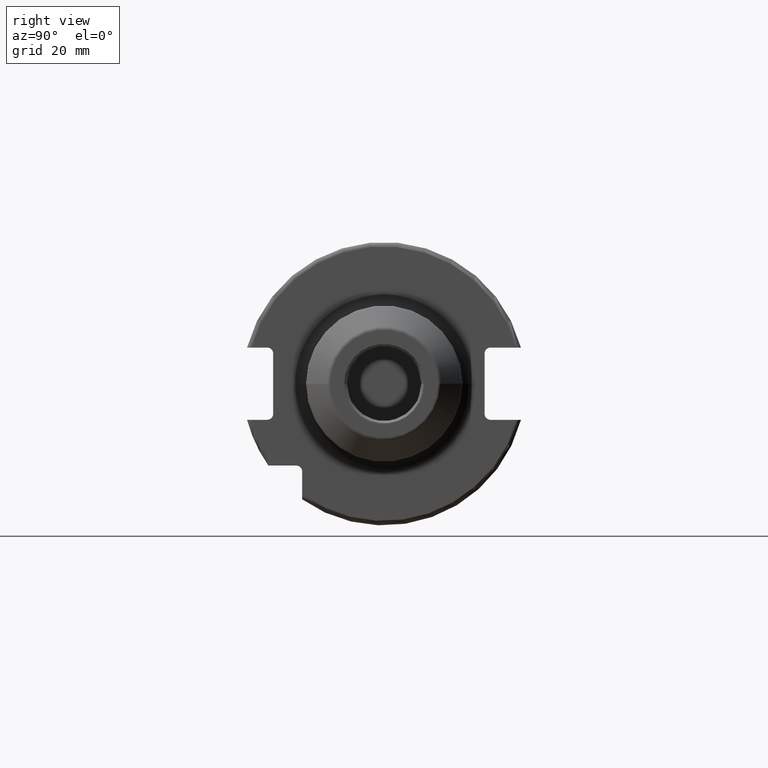
[diagram: clean part render]
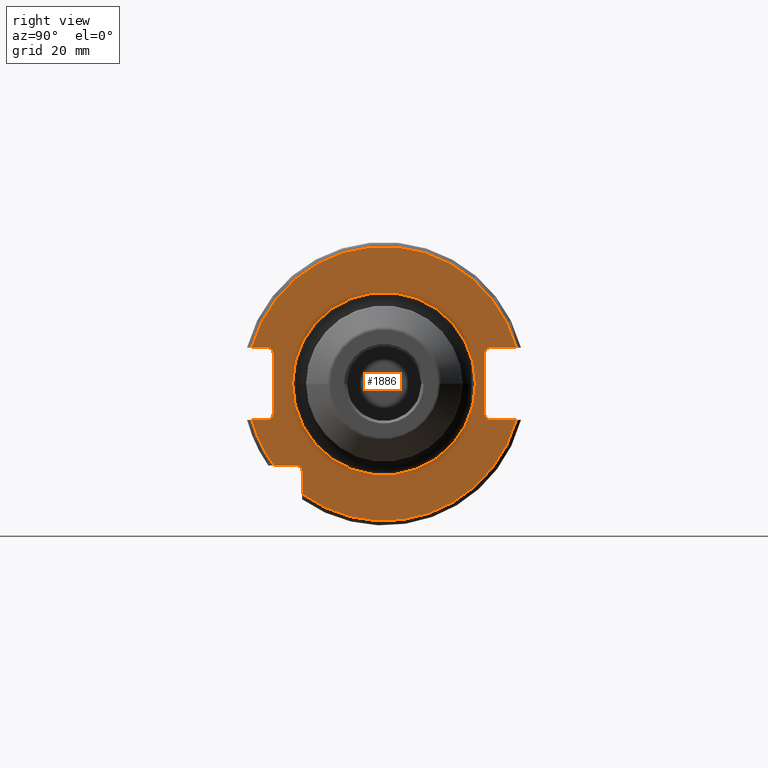
[diagram: same view with one face highlighted and labeled with its STEP entity id]
A machine part, right view. The second image highlights one B-rep face of the part: STEP entity #1886.
In plain terms, the highlighted planar face has unit normal (1, 0, 0).
Its self-contained STEP definition (entity closure, byte-faithful):
#130=CARTESIAN_POINT('',(1.905E1,2.39E1,-6.75E0));
#131=DIRECTION('',(-1.E0,0.E0,0.E0));
#132=DIRECTION('',(0.E0,0.E0,-1.E0));
#133=AXIS2_PLACEMENT_3D('',#130,#131,#132);
#195=CARTESIAN_POINT('',(1.905E1,2.39E1,6.75E0));
#196=DIRECTION('',(-1.E0,0.E0,0.E0));
#197=DIRECTION('',(0.E0,-1.E0,0.E0));
#198=AXIS2_PLACEMENT_3D('',#195,#196,#197);
#205=DIRECTION('',(0.E0,-1.E0,0.E0));
#206=VECTOR('',#205,5.776950757280E0);
#207=CARTESIAN_POINT('',(1.905E1,2.967695075728E1,8.1E0));
#208=LINE('',#207,#206);
#209=DIRECTION('',(0.E0,0.E0,-1.E0));
#210=VECTOR('',#209,1.35E1);
#211=CARTESIAN_POINT('',(1.905E1,2.255E1,6.75E0));
#212=LINE('',#211,#210);
#213=DIRECTION('',(0.E0,-1.E0,0.E0));
#214=VECTOR('',#213,5.776950757280E0);
#215=CARTESIAN_POINT('',(1.905E1,2.967695075728E1,-8.1E0));
#216=LINE('',#215,#214);
#217=DIRECTION('',(0.E0,0.E0,1.E0));
#218=VECTOR('',#217,4.990259339464E0);
#219=CARTESIAN_POINT('',(1.905E1,-1.835E1,-2.469025933946E1));
#220=LINE('',#219,#218);
#221=DIRECTION('',(0.E0,-1.E0,0.E0));
#222=VECTOR('',#221,4.990259339464E0);
#223=CARTESIAN_POINT('',(1.905E1,-1.97E1,-1.835E1));
#224=LINE('',#223,#222);
#225=DIRECTION('',(0.E0,1.E0,0.E0));
#226=VECTOR('',#225,3.476950757280E0);
#227=CARTESIAN_POINT('',(1.905E1,-2.967695075728E1,-8.1E0));
#228=LINE('',#227,#226);
#229=DIRECTION('',(0.E0,0.E0,1.E0));
#230=VECTOR('',#229,1.35E1);
#231=CARTESIAN_POINT('',(1.905E1,-2.485E1,-6.75E0));
#232=LINE('',#231,#230);
#233=DIRECTION('',(0.E0,1.E0,0.E0));
#234=VECTOR('',#233,3.476950757280E0);
#235=CARTESIAN_POINT('',(1.905E1,-2.967695075728E1,8.1E0));
#236=LINE('',#235,#234);
#237=CARTESIAN_POINT('',(1.905E1,0.E0,0.E0));
#238=DIRECTION('',(1.E0,0.E0,0.E0));
#239=DIRECTION('',(0.E0,-1.E0,0.E0));
#240=AXIS2_PLACEMENT_3D('',#237,#238,#239);
#242=CARTESIAN_POINT('',(1.905E1,0.E0,0.E0));
#243=DIRECTION('',(1.E0,0.E0,0.E0));
#244=DIRECTION('',(0.E0,1.E0,0.E0));
#245=AXIS2_PLACEMENT_3D('',#242,#243,#244);
#251=CARTESIAN_POINT('',(1.905E1,2.967695075728E1,8.1E0));
#262=CARTESIAN_POINT('',(1.905E1,0.E0,0.E0));
#263=DIRECTION('',(1.E0,0.E0,0.E0));
#264=DIRECTION('',(0.E0,9.647119303464E-1,2.633075985372E-1));
#265=AXIS2_PLACEMENT_3D('',#262,#263,#264);
#276=CARTESIAN_POINT('',(1.905E1,-2.967695075728E1,8.1E0));
#282=CARTESIAN_POINT('',(1.905E1,-2.62E1,6.75E0));
#283=DIRECTION('',(-1.E0,0.E0,0.E0));
#284=DIRECTION('',(0.E0,0.E0,1.E0));
#285=AXIS2_PLACEMENT_3D('',#282,#283,#284);
#300=CARTESIAN_POINT('',(1.905E1,-2.62E1,-6.75E0));
#301=DIRECTION('',(-1.E0,0.E0,0.E0));
#302=DIRECTION('',(0.E0,1.E0,0.E0));
#303=AXIS2_PLACEMENT_3D('',#300,#301,#302);
#323=CARTESIAN_POINT('',(1.905E1,2.967695075728E1,-8.1E0));
#336=CARTESIAN_POINT('',(1.905E1,0.E0,0.E0));
#337=DIRECTION('',(-1.E0,0.E0,0.E0));
#338=DIRECTION('',(0.E0,9.647119303464E-1,-2.633075985372E-1));
#339=AXIS2_PLACEMENT_3D('',#336,#337,#338);
#341=CARTESIAN_POINT('',(1.905E1,-2.967695075728E1,-8.1E0));
#352=CARTESIAN_POINT('',(1.905E1,0.E0,0.E0));
#353=DIRECTION('',(-1.E0,0.E0,0.E0));
#354=DIRECTION('',(0.E0,-8.026089992512E-1,-5.965054855750E-1));
#355=AXIS2_PLACEMENT_3D('',#352,#353,#354);
#767=CARTESIAN_POINT('',(1.905E1,-1.97E1,-1.97E1));
#768=DIRECTION('',(-1.E0,0.E0,0.E0));
#769=DIRECTION('',(0.E0,0.E0,1.E0));
#770=AXIS2_PLACEMENT_3D('',#767,#768,#769);
#1459=VERTEX_POINT('',#251);
#1460=VERTEX_POINT('',#276);
#1463=VERTEX_POINT('',#323);
#1464=VERTEX_POINT('',#341);
#1475=CARTESIAN_POINT('',(1.905E1,-1.835E1,-2.469025933946E1));
#1476=VERTEX_POINT('',#1475);
#1483=CARTESIAN_POINT('',(1.905E1,2.39E1,-8.1E0));
#1485=VERTEX_POINT('',#1483);
#1487=CARTESIAN_POINT('',(1.905E1,2.255E1,-6.75E0));
#1489=VERTEX_POINT('',#1487);
#1491=CARTESIAN_POINT('',(1.905E1,2.255E1,6.75E0));
#1493=VERTEX_POINT('',#1491);
#1495=CARTESIAN_POINT('',(1.905E1,2.39E1,8.1E0));
#1497=VERTEX_POINT('',#1495);
#1499=CARTESIAN_POINT('',(1.905E1,-2.485E1,-6.75E0));
#1501=VERTEX_POINT('',#1499);
#1503=CARTESIAN_POINT('',(1.905E1,-2.62E1,-8.1E0));
#1505=VERTEX_POINT('',#1503);
#1507=CARTESIAN_POINT('',(1.905E1,-2.62E1,8.1E0));
#1509=VERTEX_POINT('',#1507);
#1511=CARTESIAN_POINT('',(1.905E1,-2.485E1,6.75E0));
#1513=VERTEX_POINT('',#1511);
#1515=CARTESIAN_POINT('',(1.905E1,-1.97E1,-1.835E1));
#1516=CARTESIAN_POINT('',(1.905E1,-2.469025933946E1,-1.835E1));
#1517=VERTEX_POINT('',#1515);
#1518=VERTEX_POINT('',#1516);
#1519=CARTESIAN_POINT('',(1.905E1,-1.835E1,-1.97E1));
#1520=VERTEX_POINT('',#1519);
#1548=CARTESIAN_POINT('',(1.905E1,-2.05E1,0.E0));
#1549=CARTESIAN_POINT('',(1.905E1,2.05E1,0.E0));
#1550=VERTEX_POINT('',#1548);
#1551=VERTEX_POINT('',#1549);
#1845=CARTESIAN_POINT('',(1.905E1,0.E0,0.E0));
#1846=DIRECTION('',(1.E0,0.E0,0.E0));
#1847=DIRECTION('',(0.E0,-1.E0,0.E0));
#1848=AXIS2_PLACEMENT_3D('',#1845,#1846,#1847);
#1849=PLANE('',#1848);
#1851=ORIENTED_EDGE('',*,*,#1850,.T.);
#1852=ORIENTED_EDGE('',*,*,#1837,.F.);
#1853=ORIENTED_EDGE('',*,*,#1726,.T.);
#1854=ORIENTED_EDGE('',*,*,#1747,.F.);
#1855=ORIENTED_EDGE('',*,*,#1785,.F.);
#1857=ORIENTED_EDGE('',*,*,#1856,.T.);
#1859=ORIENTED_EDGE('',*,*,#1858,.T.);
#1861=ORIENTED_EDGE('',*,*,#1860,.F.);
#1863=ORIENTED_EDGE('',*,*,#1862,.T.);
#1865=ORIENTED_EDGE('',*,*,#1864,.T.);
#1867=ORIENTED_EDGE('',*,*,#1866,.T.);
#1869=ORIENTED_EDGE('',*,*,#1868,.F.);
#1871=ORIENTED_EDGE('',*,*,#1870,.T.);
#1873=ORIENTED_EDGE('',*,*,#1872,.F.);
#1875=ORIENTED_EDGE('',*,*,#1874,.F.);
#1877=ORIENTED_EDGE('',*,*,#1876,.F.);
#1878=EDGE_LOOP('',(#1851,#1852,#1853,#1854,#1855,#1857,#1859,#1861,#1863,#1865,
#1867,#1869,#1871,#1873,#1875,#1877));
#1879=FACE_OUTER_BOUND('',#1878,.F.);
#1881=ORIENTED_EDGE('',*,*,#1880,.T.);
#1883=ORIENTED_EDGE('',*,*,#1882,.T.);
#1884=EDGE_LOOP('',(#1881,#1883));
#1885=FACE_BOUND('',#1884,.F.);
#1886=ADVANCED_FACE('',(#1879,#1885),#1849,.T.);
#134=CIRCLE('',#133,1.35E0);
#199=CIRCLE('',#198,1.35E0);
#241=CIRCLE('',#240,2.05E1);
#246=CIRCLE('',#245,2.05E1);
#266=CIRCLE('',#265,3.07625E1);
#286=CIRCLE('',#285,1.35E0);
#304=CIRCLE('',#303,1.35E0);
#340=CIRCLE('',#339,3.07625E1);
#356=CIRCLE('',#355,3.07625E1);
#771=CIRCLE('',#770,1.35E0);
#1726=EDGE_CURVE('',#1493,#1489,#212,.T.);
#1747=EDGE_CURVE('',#1485,#1489,#134,.T.);
#1785=EDGE_CURVE('',#1463,#1485,#216,.T.);
#1837=EDGE_CURVE('',#1493,#1497,#199,.T.);
#1850=EDGE_CURVE('',#1459,#1497,#208,.T.);
#1856=EDGE_CURVE('',#1463,#1476,#340,.T.);
#1858=EDGE_CURVE('',#1476,#1520,#220,.T.);
#1860=EDGE_CURVE('',#1517,#1520,#771,.T.);
#1862=EDGE_CURVE('',#1517,#1518,#224,.T.);
#1864=EDGE_CURVE('',#1518,#1464,#356,.T.);
#1866=EDGE_CURVE('',#1464,#1505,#228,.T.);
#1868=EDGE_CURVE('',#1501,#1505,#304,.T.);
#1870=EDGE_CURVE('',#1501,#1513,#232,.T.);
#1872=EDGE_CURVE('',#1509,#1513,#286,.T.);
#1874=EDGE_CURVE('',#1460,#1509,#236,.T.);
#1876=EDGE_CURVE('',#1459,#1460,#266,.T.);
#1880=EDGE_CURVE('',#1550,#1551,#241,.T.);
#1882=EDGE_CURVE('',#1551,#1550,#246,.T.);